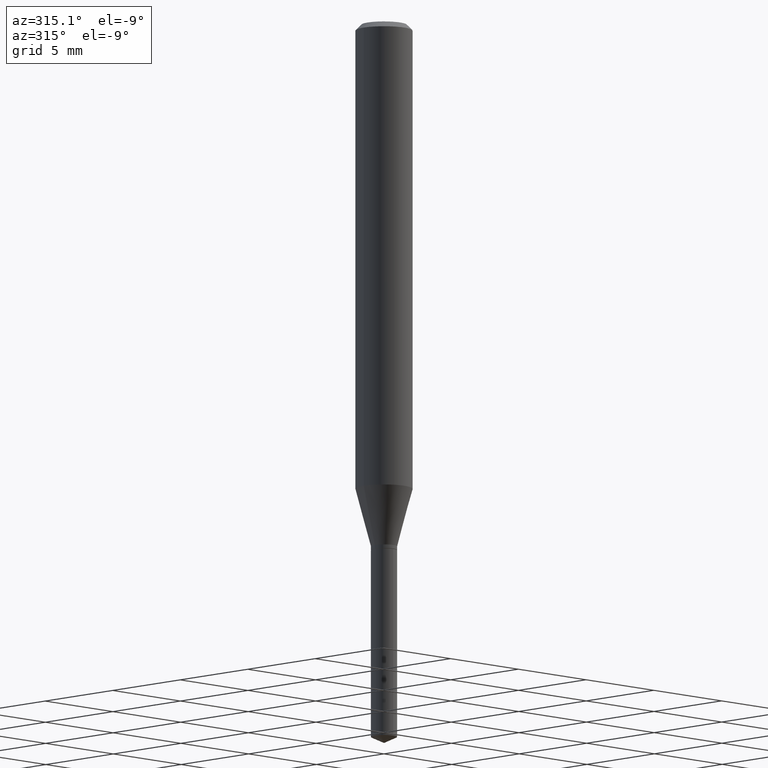
[diagram: clean part render]
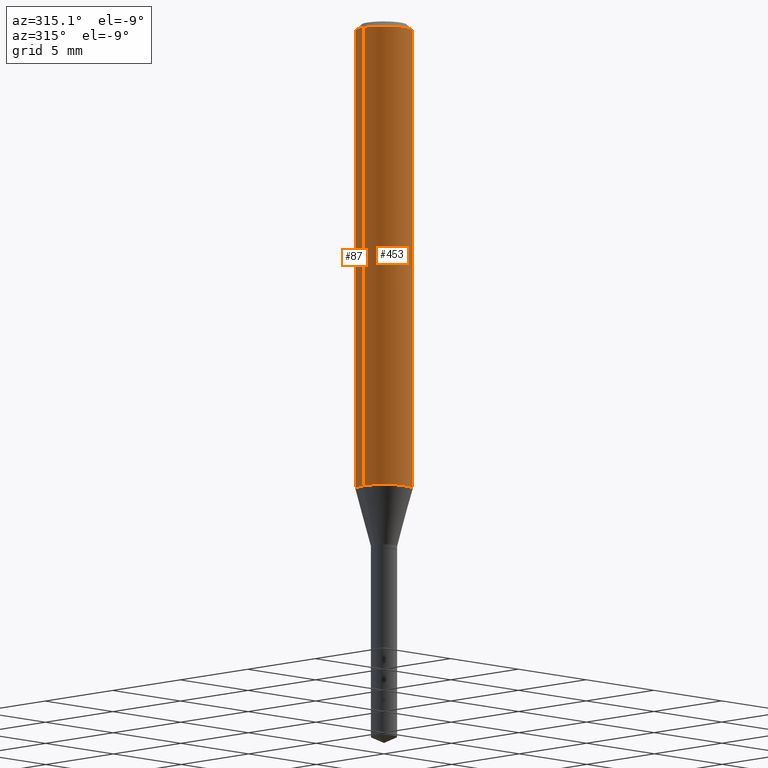
[diagram: same view with one multi-face feature highlighted, each face labeled with its STEP entity id]
A machine part, auxiliary view. The highlighted faces form ONE feature: a constant-radius fillet chain: 2 tangent blend faces with common blend radius 1.4999 mm. The faces share edges in the B-rep.
Their STEP definitions:
[1] entity #453 (Cylinder):
#19 = CARTESIAN_POINT ( 'NONE',  ( -0.05905000000000011628, -2.955294458470109520E-15, -0.9666011690770388576 ) ) ;
#36 = EDGE_CURVE ( 'NONE', #42, #462, #484, .T. ) ;
#42 = VERTEX_POINT ( 'NONE', #356 ) ;
#63 = AXIS2_PLACEMENT_3D ( 'NONE', #411, #331, #481 ) ;
#64 = DIRECTION ( 'NONE',  ( -2.445468806185136597E-29, 3.491481338843145583E-15, 1.000000000000000000 ) ) ;
#76 = CARTESIAN_POINT ( 'NONE',  ( 0.05905000000000006077, -4.123439461173744764E-16, 2.879382386107503023E-30 ) ) ;
#81 = VERTEX_POINT ( 'NONE', #19 ) ;
#95 = DIRECTION ( 'NONE',  ( -2.445468806185136597E-29, 3.491481338843145583E-15, 1.000000000000000000 ) ) ;
#99 = LINE ( 'NONE', #405, #125 ) ;
#104 = DIRECTION ( 'NONE',  ( 1.000000000000000000, -6.982962677686266711E-15, 4.876176775795935793E-29 ) ) ;
#125 = VECTOR ( 'NONE', #444, 39.37007874015748143 ) ;
#138 = CYLINDRICAL_SURFACE ( 'NONE', #305, 0.05905000000000006077 ) ;
#182 = ORIENTED_EDGE ( 'NONE', *, *, #254, .T. ) ;
#188 = ORIENTED_EDGE ( 'NONE', *, *, #318, .T. ) ;
#195 = ORIENTED_EDGE ( 'NONE', *, *, #277, .F. ) ;
#199 = LINE ( 'NONE', #76, #414 ) ;
#211 = CIRCLE ( 'NONE', #63, 0.05905000000000011628 ) ;
#241 = VERTEX_POINT ( 'NONE', #303 ) ;
#249 = DIRECTION ( 'NONE',  ( 1.000000000000000000, -6.982962677686266711E-15, 0.000000000000000000 ) ) ;
#254 = EDGE_CURVE ( 'NONE', #81, #241, #211, .T. ) ;
#277 = EDGE_CURVE ( 'NONE', #81, #42, #99, .T. ) ;
#292 = CARTESIAN_POINT ( 'NONE',  ( 2.888098660104663328E-31, -4.123439461173779030E-17, -0.01181000000000006871 ) ) ;
#303 = CARTESIAN_POINT ( 'NONE',  ( 0.05905000000000011628, -3.787213890053824327E-15, -0.9666011690770388576 ) ) ;
#304 = CARTESIAN_POINT ( 'NONE',  ( 0.000000000000000000, 0.000000000000000000, 0.000000000000000000 ) ) ;
#305 = AXIS2_PLACEMENT_3D ( 'NONE', #304, #64, #104 ) ;
#318 = EDGE_CURVE ( 'NONE', #241, #462, #199, .T. ) ;
#331 = DIRECTION ( 'NONE',  ( -2.445468806185136597E-29, 3.491481338843145583E-15, 1.000000000000000000 ) ) ;
#348 = ORIENTED_EDGE ( 'NONE', *, *, #36, .F. ) ;
#356 = CARTESIAN_POINT ( 'NONE',  ( -0.05904999999999999832, -1.288476683807753089E-15, -0.01181000000000006871 ) ) ;
#377 = FACE_OUTER_BOUND ( 'NONE', #423, .T. ) ;
#393 = DIRECTION ( 'NONE',  ( -2.445468806185136877E-29, 3.491481338843145188E-15, 1.000000000000000000 ) ) ;
#405 = CARTESIAN_POINT ( 'NONE',  ( -0.05905000000000006077, 4.195754854663395916E-16, -2.904631170795524694E-30 ) ) ;
#411 = CARTESIAN_POINT ( 'NONE',  ( 2.363793006999983413E-29, -3.374869943936449013E-15, -0.9666011690770388576 ) ) ;
#414 = VECTOR ( 'NONE', #393, 39.37007874015748143 ) ;
#423 = EDGE_LOOP ( 'NONE', ( #195, #182, #188, #348 ) ) ;
#444 = DIRECTION ( 'NONE',  ( -2.445468806185136877E-29, 3.491481338843145188E-15, 1.000000000000000000 ) ) ;
#449 = CARTESIAN_POINT ( 'NONE',  ( 0.05904999999999999832, -4.535783407291118600E-16, -0.01181000000000006871 ) ) ;
#453 = ADVANCED_FACE ( 'NONE', ( #377 ), #138, .T. ) ;
#460 = AXIS2_PLACEMENT_3D ( 'NONE', #292, #95, #249 ) ;
#462 = VERTEX_POINT ( 'NONE', #449 ) ;
#481 = DIRECTION ( 'NONE',  ( 1.000000000000000000, -6.982962677686266711E-15, 0.000000000000000000 ) ) ;
#484 = CIRCLE ( 'NONE', #460, 0.05904999999999999832 ) ;
[2] entity #87 (Cylinder):
#2 = ORIENTED_EDGE ( 'NONE', *, *, #277, .T. ) ;
#15 = DIRECTION ( 'NONE',  ( 1.000000000000000000, -6.982962677686266711E-15, 4.876176775795935793E-29 ) ) ;
#19 = CARTESIAN_POINT ( 'NONE',  ( -0.05905000000000011628, -2.955294458470109520E-15, -0.9666011690770388576 ) ) ;
#21 = AXIS2_PLACEMENT_3D ( 'NONE', #215, #201, #354 ) ;
#42 = VERTEX_POINT ( 'NONE', #356 ) ;
#52 = EDGE_CURVE ( 'NONE', #462, #42, #347, .T. ) ;
#62 = ORIENTED_EDGE ( 'NONE', *, *, #165, .T. ) ;
#74 = EDGE_LOOP ( 'NONE', ( #62, #2, #107, #420 ) ) ;
#76 = CARTESIAN_POINT ( 'NONE',  ( 0.05905000000000006077, -4.123439461173744764E-16, 2.879382386107503023E-30 ) ) ;
#81 = VERTEX_POINT ( 'NONE', #19 ) ;
#87 = ADVANCED_FACE ( 'NONE', ( #437 ), #464, .T. ) ;
#88 = DIRECTION ( 'NONE',  ( -2.445468806185136597E-29, 3.491481338843145583E-15, 1.000000000000000000 ) ) ;
#90 = CARTESIAN_POINT ( 'NONE',  ( 2.888098660104663328E-31, -4.123439461173779030E-17, -0.01181000000000006871 ) ) ;
#99 = LINE ( 'NONE', #405, #125 ) ;
#107 = ORIENTED_EDGE ( 'NONE', *, *, #52, .F. ) ;
#125 = VECTOR ( 'NONE', #444, 39.37007874015748143 ) ;
#148 = AXIS2_PLACEMENT_3D ( 'NONE', #245, #88, #15 ) ;
#165 = EDGE_CURVE ( 'NONE', #241, #81, #291, .T. ) ;
#199 = LINE ( 'NONE', #76, #414 ) ;
#201 = DIRECTION ( 'NONE',  ( -2.445468806185136597E-29, 3.491481338843145583E-15, 1.000000000000000000 ) ) ;
#215 = CARTESIAN_POINT ( 'NONE',  ( 2.363793006999983413E-29, -3.374869943936449013E-15, -0.9666011690770388576 ) ) ;
#241 = VERTEX_POINT ( 'NONE', #303 ) ;
#245 = CARTESIAN_POINT ( 'NONE',  ( 0.000000000000000000, 0.000000000000000000, 0.000000000000000000 ) ) ;
#251 = DIRECTION ( 'NONE',  ( -2.445468806185136597E-29, 3.491481338843145583E-15, 1.000000000000000000 ) ) ;
#270 = AXIS2_PLACEMENT_3D ( 'NONE', #90, #251, #296 ) ;
#277 = EDGE_CURVE ( 'NONE', #81, #42, #99, .T. ) ;
#291 = CIRCLE ( 'NONE', #21, 0.05905000000000011628 ) ;
#296 = DIRECTION ( 'NONE',  ( 1.000000000000000000, -6.982962677686266711E-15, 0.000000000000000000 ) ) ;
#303 = CARTESIAN_POINT ( 'NONE',  ( 0.05905000000000011628, -3.787213890053824327E-15, -0.9666011690770388576 ) ) ;
#318 = EDGE_CURVE ( 'NONE', #241, #462, #199, .T. ) ;
#347 = CIRCLE ( 'NONE', #270, 0.05904999999999999832 ) ;
#354 = DIRECTION ( 'NONE',  ( 1.000000000000000000, -6.982962677686266711E-15, 0.000000000000000000 ) ) ;
#356 = CARTESIAN_POINT ( 'NONE',  ( -0.05904999999999999832, -1.288476683807753089E-15, -0.01181000000000006871 ) ) ;
#393 = DIRECTION ( 'NONE',  ( -2.445468806185136877E-29, 3.491481338843145188E-15, 1.000000000000000000 ) ) ;
#405 = CARTESIAN_POINT ( 'NONE',  ( -0.05905000000000006077, 4.195754854663395916E-16, -2.904631170795524694E-30 ) ) ;
#414 = VECTOR ( 'NONE', #393, 39.37007874015748143 ) ;
#420 = ORIENTED_EDGE ( 'NONE', *, *, #318, .F. ) ;
#437 = FACE_OUTER_BOUND ( 'NONE', #74, .T. ) ;
#444 = DIRECTION ( 'NONE',  ( -2.445468806185136877E-29, 3.491481338843145188E-15, 1.000000000000000000 ) ) ;
#449 = CARTESIAN_POINT ( 'NONE',  ( 0.05904999999999999832, -4.535783407291118600E-16, -0.01181000000000006871 ) ) ;
#462 = VERTEX_POINT ( 'NONE', #449 ) ;
#464 = CYLINDRICAL_SURFACE ( 'NONE', #148, 0.05905000000000006077 ) ;